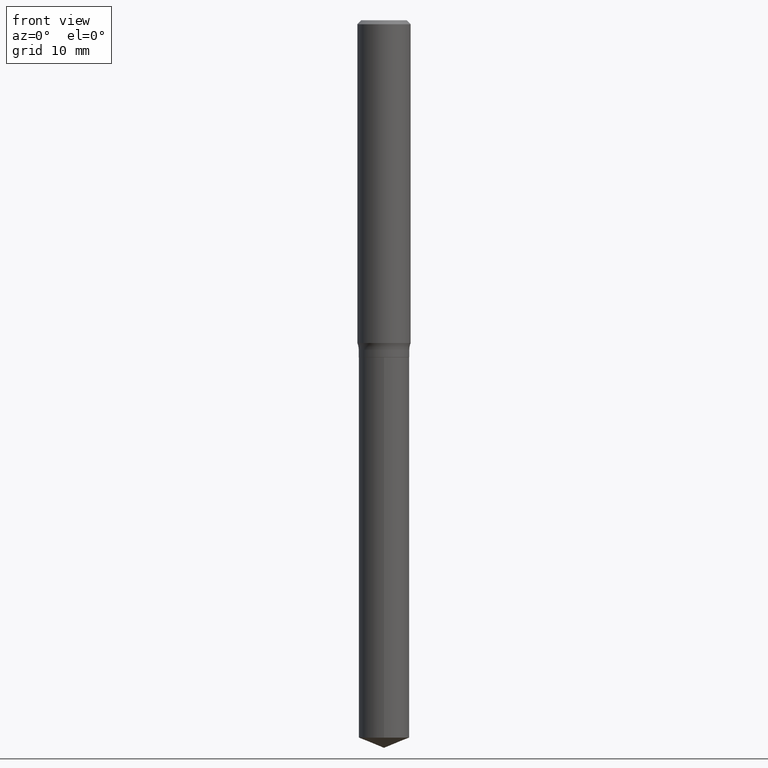
[diagram: clean part render]
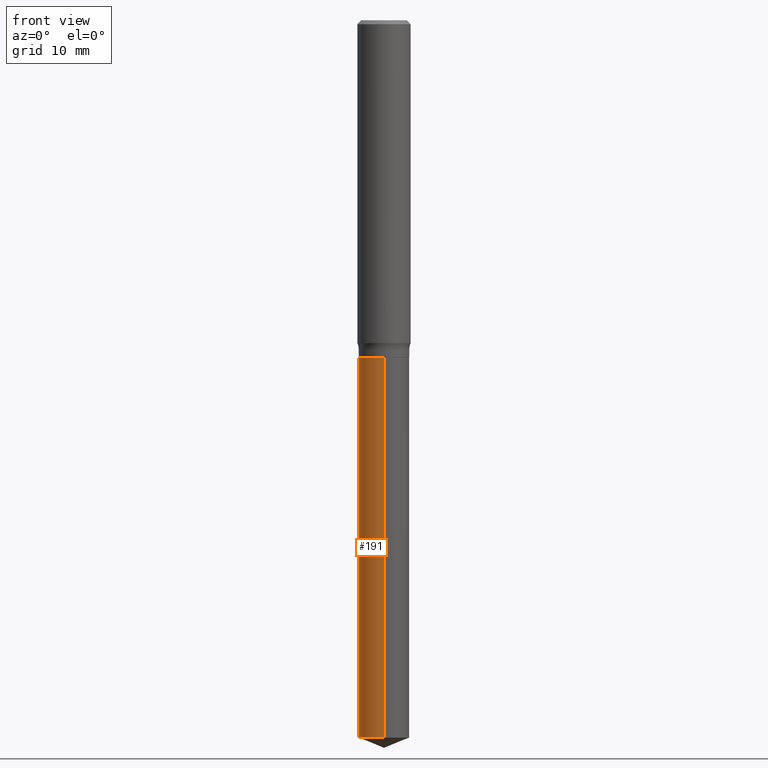
[diagram: same view with one face highlighted and labeled with its STEP entity id]
A machine part, front view. The second image highlights one B-rep face of the part: STEP entity #191.
In plain terms, the highlighted cylindrical surface (edge-blend (fillet) strip) has radius 2.8499 mm, axis along (-0, 0, 1).
Its self-contained STEP definition (entity closure, byte-faithful):
#11 = LINE ( 'NONE', #474, #375 ) ;
#27 = CARTESIAN_POINT ( 'NONE',  ( 7.783106181679228868E-29, -1.111224080893544162E-14, -3.182668257461295003 ) ) ;
#78 = CYLINDRICAL_SURFACE ( 'NONE', #112, 0.1122000000000000081 ) ;
#85 = ORIENTED_EDGE ( 'NONE', *, *, #143, .T. ) ;
#89 = EDGE_CURVE ( 'NONE', #270, #215, #103, .T. ) ;
#103 = LINE ( 'NONE', #145, #164 ) ;
#111 = DIRECTION ( 'NONE',  ( -6.982962677686265133E-15, -1.000000000000000000, 4.869604266781217263E-15 ) ) ;
#112 = AXIS2_PLACEMENT_3D ( 'NONE', #190, #489, #334 ) ;
#143 = EDGE_CURVE ( 'NONE', #219, #270, #172, .T. ) ;
#145 = CARTESIAN_POINT ( 'NONE',  ( -7.834884124363625186E-16, -0.1122000000000052261, -1.495699999999999807 ) ) ;
#164 = VECTOR ( 'NONE', #444, 39.37007874015748143 ) ;
#169 = DIRECTION ( 'NONE',  ( -2.445463019248761495E-29, 3.491489626065407071E-15, 1.000000000000000000 ) ) ;
#172 = CIRCLE ( 'NONE', #292, 0.1122000000000000081 ) ;
#174 = CARTESIAN_POINT ( 'NONE',  ( 7.972289495229102672E-16, 0.1121999999999947761, -1.495700000000000474 ) ) ;
#190 = CARTESIAN_POINT ( 'NONE',  ( 3.657687693411109493E-29, -5.222208638507693246E-15, -1.495700000000000029 ) ) ;
#191 = ADVANCED_FACE ( 'NONE', ( #378 ), #78, .T. ) ;
#203 = DIRECTION ( 'NONE',  ( -2.445463019248761215E-29, 3.491489626065407071E-15, 1.000000000000000000 ) ) ;
#204 = ORIENTED_EDGE ( 'NONE', *, *, #390, .F. ) ;
#209 = CIRCLE ( 'NONE', #465, 0.1122000000000000081 ) ;
#215 = VERTEX_POINT ( 'NONE', #339 ) ;
#219 = VERTEX_POINT ( 'NONE', #294 ) ;
#262 = DIRECTION ( 'NONE',  ( -2.445463019248761215E-29, 3.491489626065407071E-15, 1.000000000000000000 ) ) ;
#263 = CARTESIAN_POINT ( 'NONE',  ( 3.657687693411109493E-29, -5.222208638507693246E-15, -1.495700000000000029 ) ) ;
#267 = EDGE_CURVE ( 'NONE', #359, #215, #209, .T. ) ;
#270 = VERTEX_POINT ( 'NONE', #466 ) ;
#285 = DIRECTION ( 'NONE',  ( -6.982962677686265133E-15, -1.000000000000000000, 2.434802133390608632E-15 ) ) ;
#292 = AXIS2_PLACEMENT_3D ( 'NONE', #27, #262, #111 ) ;
#294 = CARTESIAN_POINT ( 'NONE',  ( 7.972289495229100700E-16, 0.1121999999999888920, -3.182668257461295891 ) ) ;
#321 = ORIENTED_EDGE ( 'NONE', *, *, #267, .F. ) ;
#334 = DIRECTION ( 'NONE',  ( -6.982962677686265133E-15, -1.000000000000000000, 2.434802133390608632E-15 ) ) ;
#339 = CARTESIAN_POINT ( 'NONE',  ( -7.834884124363625186E-16, -0.1122000000000052261, -1.495699999999999807 ) ) ;
#359 = VERTEX_POINT ( 'NONE', #174 ) ;
#375 = VECTOR ( 'NONE', #169, 39.37007874015748143 ) ;
#378 = FACE_OUTER_BOUND ( 'NONE', #456, .T. ) ;
#389 = ORIENTED_EDGE ( 'NONE', *, *, #89, .T. ) ;
#390 = EDGE_CURVE ( 'NONE', #219, #359, #11, .T. ) ;
#444 = DIRECTION ( 'NONE',  ( -2.445463019248761495E-29, 3.491489626065407071E-15, 1.000000000000000000 ) ) ;
#456 = EDGE_LOOP ( 'NONE', ( #204, #85, #389, #321 ) ) ;
#465 = AXIS2_PLACEMENT_3D ( 'NONE', #263, #203, #285 ) ;
#466 = CARTESIAN_POINT ( 'NONE',  ( -7.834884124363212020E-16, -0.1122000000000110964, -3.182668257461294559 ) ) ;
#474 = CARTESIAN_POINT ( 'NONE',  ( 7.972289495228688520E-16, 0.1121999999999947761, -1.495700000000000474 ) ) ;
#489 = DIRECTION ( 'NONE',  ( -2.445463019248761215E-29, 3.491489626065407071E-15, 1.000000000000000000 ) ) ;